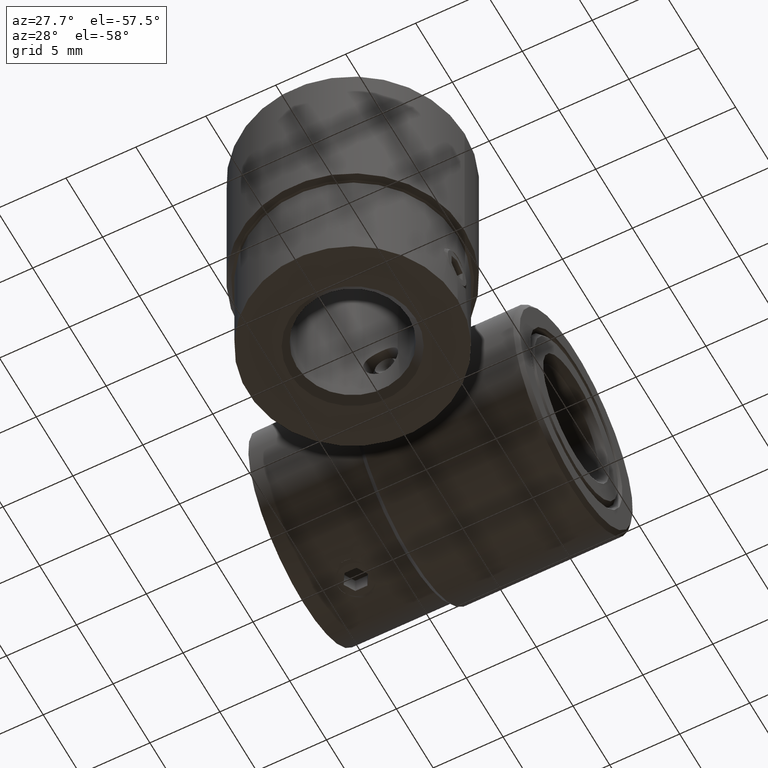
[diagram: clean part render]
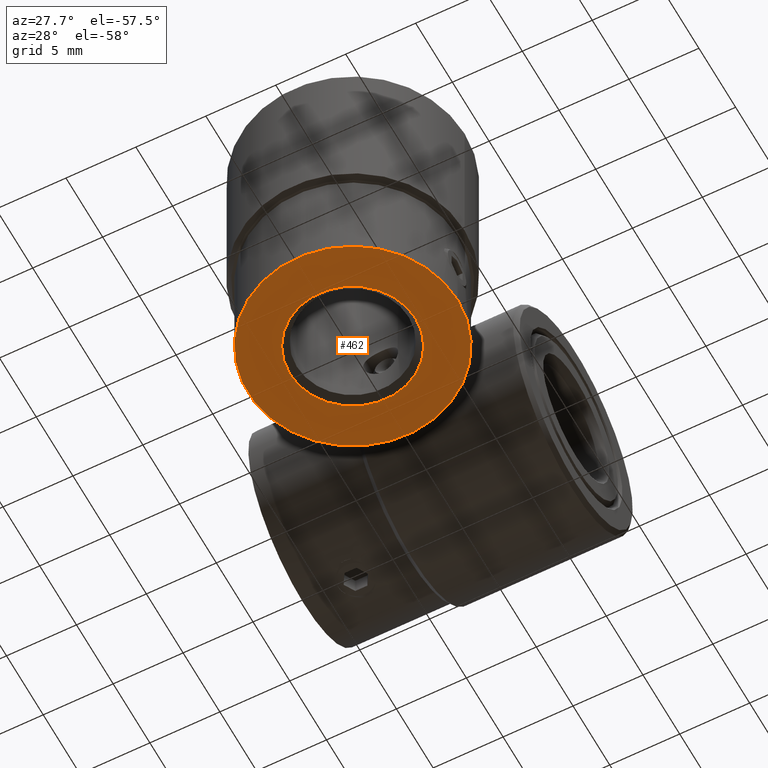
[diagram: same view with one face highlighted and labeled with its STEP entity id]
A machine part, auxiliary view. The second image highlights one B-rep face of the part: STEP entity #462.
In plain terms, the highlighted planar face has unit normal (0, 0, 1).
Its self-contained STEP definition (entity closure, byte-faithful):
#462 = ADVANCED_FACE( '', ( #575, #576 ), #577, .F. );
#575 = FACE_BOUND( '', #819, .T. );
#576 = FACE_OUTER_BOUND( '', #820, .T. );
#577 = PLANE( '', #821 );
#819 = EDGE_LOOP( '', ( #1077 ) );
#820 = EDGE_LOOP( '', ( #1078 ) );
#821 = AXIS2_PLACEMENT_3D( '', #1079, #1080, #1081 );
#1077 = ORIENTED_EDGE( '', *, *, #1581, .T. );
#1078 = ORIENTED_EDGE( '', *, *, #1571, .F. );
#1079 = CARTESIAN_POINT( '', ( 0.000000000000000, 0.000000000000000, -19.5000000000000 ) );
#1080 = DIRECTION( '', ( 0.000000000000000, 0.000000000000000, 1.00000000000000 ) );
#1081 = DIRECTION( '', ( 1.00000000000000, 0.000000000000000, 0.000000000000000 ) );
#1571 = EDGE_CURVE( '', #1708, #1708, #1709, .T. );
#1581 = EDGE_CURVE( '', #1728, #1728, #1729, .T. );
#1708 = VERTEX_POINT( '', #1987 );
#1709 = CIRCLE( '', #1988, 7.50000000000000 );
#1728 = VERTEX_POINT( '', #2124 );
#1729 = CIRCLE( '', #2125, 4.50000000000000 );
#1987 = CARTESIAN_POINT( '', ( 7.50000000000000, 0.000000000000000, -19.5000000000000 ) );
#1988 = AXIS2_PLACEMENT_3D( '', #2570, #2571, #2572 );
#2124 = CARTESIAN_POINT( '', ( 4.50000000000000, 0.000000000000000, -19.5000000000000 ) );
#2125 = AXIS2_PLACEMENT_3D( '', #2591, #2592, #2593 );
#2570 = CARTESIAN_POINT( '', ( 0.000000000000000, 0.000000000000000, -19.5000000000000 ) );
#2571 = DIRECTION( '', ( 0.000000000000000, 0.000000000000000, 1.00000000000000 ) );
#2572 = DIRECTION( '', ( 1.00000000000000, 0.000000000000000, 0.000000000000000 ) );
#2591 = CARTESIAN_POINT( '', ( 0.000000000000000, 0.000000000000000, -19.5000000000000 ) );
#2592 = DIRECTION( '', ( 0.000000000000000, 0.000000000000000, 1.00000000000000 ) );
#2593 = DIRECTION( '', ( 1.00000000000000, 0.000000000000000, -0.000000000000000 ) );